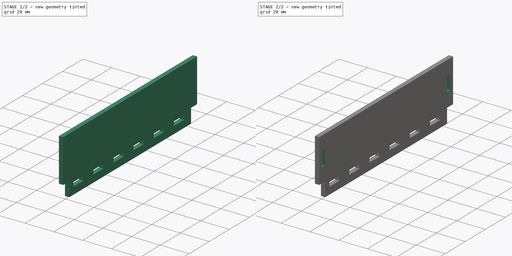
[diagram: build sequence overview — one tinted view per stage of 2, left to right]
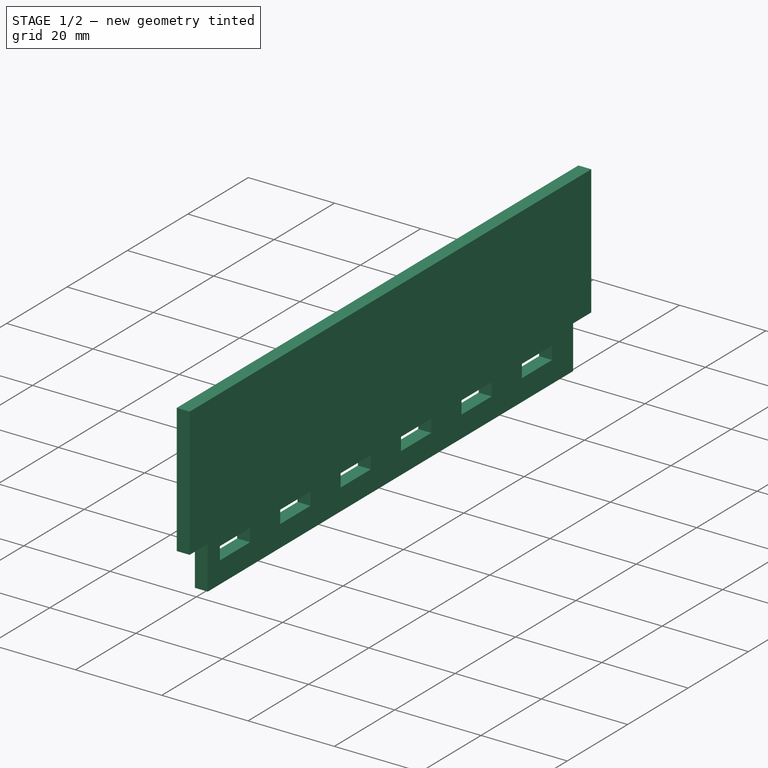
[diagram: stage 1 of 2 — iso view after this stage's code; geometry added in this stage tinted green]
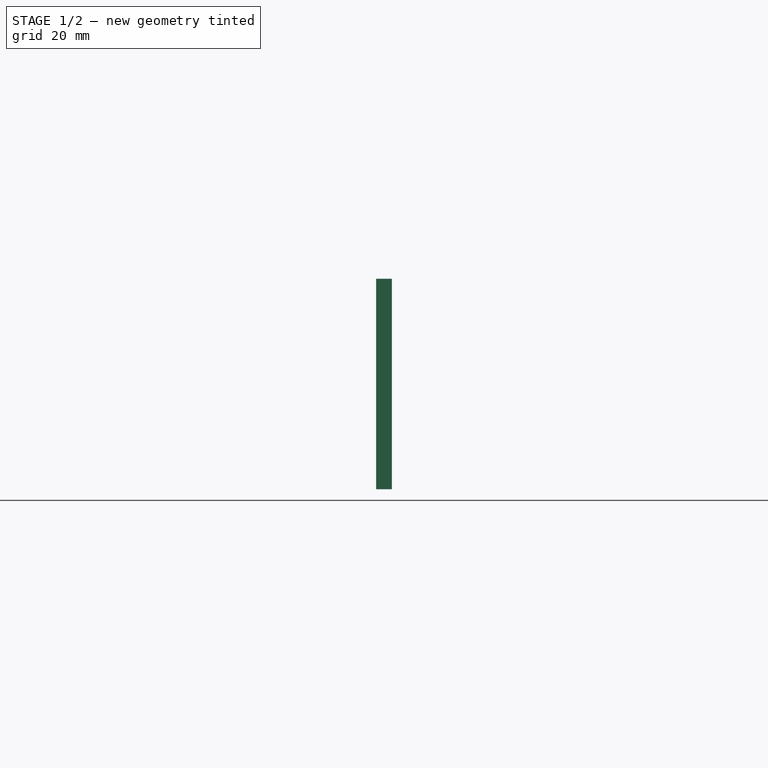
[diagram: stage 1 of 2 — front view after this stage's code; geometry added in this stage tinted green]
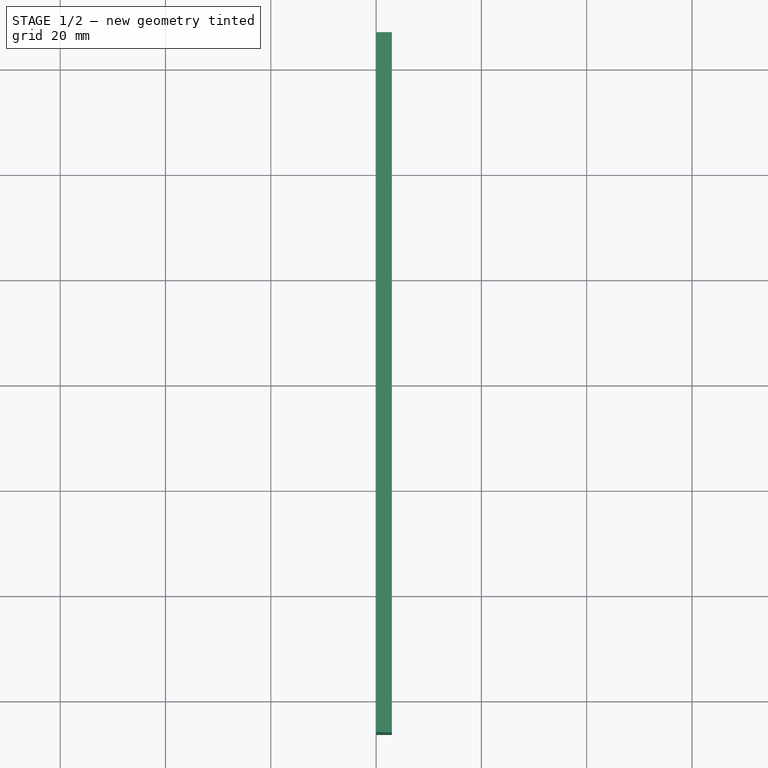
[diagram: stage 1 of 2 — top view after this stage's code; geometry added in this stage tinted green]
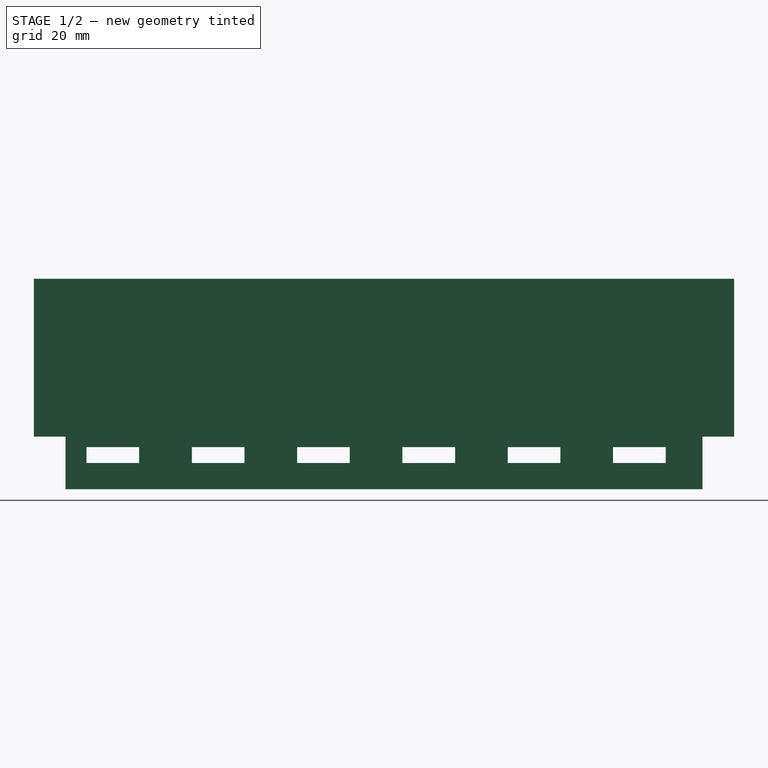
[diagram: stage 1 of 2 — right view after this stage's code; geometry added in this stage tinted green]
FCSTD DOCUMENT  (FreeCAD 0.19R24267 +148 (Git))
Label: SideDrawer
License: All rights reserved
LicenseURL: http://en.wikipedia.org/wiki/All_rights_reserved
objects: Sketcher::SketchObject×3, PartDesign::Pocket×2, PartDesign::Pad×1, PartDesign::Mirrored×1, PartDesign::Body×1
note: 11 computed .brp shape members not serialized (recipe doc carries the construction recipe); baked Part::Feature solids carry a one-line shape summary decoded from their .brp

FEATURE [Sketcher::SketchObject] Sketch
  FullyConstrained = true
  MapMode = 5
  Placement = pos=(0,0,0) rot=(0.57735,0.57735,0.57735;2.0944rad)
  Support = -> [YZ_Plane]
  sketch-geometry (8):
    g0: LineSegment StartX=-60.5 StartY=0 StartZ=0 EndX=60.5 EndY=0 EndZ=0
    g1: LineSegment StartX=66.5 StartY=10 StartZ=0 EndX=66.5 EndY=40 EndZ=0
    g2: LineSegment StartX=66.5 StartY=40 StartZ=0 EndX=-66.5 EndY=40 EndZ=0
    g3: LineSegment StartX=-66.5 StartY=40 StartZ=0 EndX=-66.5 EndY=10 EndZ=0
    g4: LineSegment StartX=-66.5 StartY=10 StartZ=0 EndX=-60.5 EndY=10 EndZ=0
    g5: LineSegment StartX=-60.5 StartY=10 StartZ=0 EndX=-60.5 EndY=0 EndZ=0
    g6: LineSegment StartX=66.5 StartY=10 StartZ=0 EndX=60.5 EndY=10 EndZ=0
    g7: LineSegment StartX=60.5 StartY=10 StartZ=0 EndX=60.5 EndY=0 EndZ=0
  constraints (23):
    c: Coincident(g1,g2)
    c: Coincident(g2,g3)
    c: Horizontal(g0)
    c: Vertical(g1)
    c: Vertical(g3)
    c: Symmetric(g1,g2,g-2)
    c: DistanceX(g2,g2) = 133
    c: Horizontal(g4)
    c: Coincident(g4,g5)
    c: Vertical(g5)
    c: Horizontal(g6)
    c: Coincident(g6,g7)
    c: Vertical(g7)
    c: Coincident(g0,g5)
    c: Coincident(g0,g7)
    c: Coincident(g1,g6)
    c: Coincident(g3,g4)
    c: Equal(g5,g7)
    c: Equal(g6,g4)
    c: DistanceY(g0,g2) = 40
    c: DistanceY(g5,g5) = 10
    c: DistanceX(g4,g4) = 6
    c: PointOnObject(g-1,g0)
FEATURE [PartDesign::Pad] Pad
  Direction = (1,1,1)
  Length = 3
  Length2 = 100
  Placement = pos=(0,0,0) rot=(0.57735,0.57735,0.57735;2.0944rad)
  Profile = -> Sketch
  Refine = true
  Type = 0
FEATURE [Sketcher::SketchObject] Sketch001
  ExternalGeometry = -> [Pad]
  FullyConstrained = true
  MapMode = 5
  Placement = pos=(3,-1.3e-15,1e-15) rot=(0.57735,0.57735,0.57735;2.0944rad)
  Support = -> [Pad]
  sketch-geometry (29):
    g0: LineSegment StartX=-56.5 StartY=5 StartZ=0 EndX=-46.5 EndY=5 EndZ=0
    g1: LineSegment StartX=-46.5 StartY=5 StartZ=0 EndX=-46.5 EndY=8 EndZ=0
    g2: LineSegment StartX=-46.5 StartY=8 StartZ=0 EndX=-56.5 EndY=8 EndZ=0
    g3: LineSegment StartX=-56.5 StartY=8 StartZ=0 EndX=-56.5 EndY=5 EndZ=0
    g4: LineSegment StartX=-36.5 StartY=5 StartZ=0 EndX=-26.5 EndY=5 EndZ=0
    g5: LineSegment StartX=-26.5 StartY=5 StartZ=0 EndX=-26.5 EndY=8 EndZ=0
    g6: LineSegment StartX=-26.5 StartY=8 StartZ=0 EndX=-36.5 EndY=8 EndZ=0
    g7: LineSegment StartX=-36.5 StartY=8 StartZ=0 EndX=-36.5 EndY=5 EndZ=0
    g8: LineSegment StartX=-56.5 StartY=5 StartZ=0 EndX=-36.5 EndY=5 EndZ=0
    g9: LineSegment StartX=-16.5 StartY=5 StartZ=0 EndX=-6.5 EndY=5 EndZ=0
    g10: LineSegment StartX=-6.5 StartY=5 StartZ=0 EndX=-6.5 EndY=8 EndZ=0
    g11: LineSegment StartX=-6.5 StartY=8 StartZ=0 EndX=-16.5 EndY=8 EndZ=0
    g12: LineSegment StartX=-16.5 StartY=8 StartZ=0 EndX=-16.5 EndY=5 EndZ=0
    g13: LineSegment StartX=-36.5 StartY=5 StartZ=0 EndX=-16.5 EndY=5 EndZ=0
    g14: LineSegment StartX=3.5 StartY=5 StartZ=0 EndX=13.5 EndY=5 EndZ=0
    g15: LineSegment StartX=13.5 StartY=5 StartZ=0 EndX=13.5 EndY=8 EndZ=0
    g16: LineSegment StartX=13.5 StartY=8 StartZ=0 EndX=3.5 EndY=8 EndZ=0
    g17: LineSegment StartX=3.5 StartY=8 StartZ=0 EndX=3.5 EndY=5 EndZ=0
    g18: LineSegment StartX=-16.5 StartY=5 StartZ=0 EndX=3.5 EndY=5 EndZ=0
    g19: LineSegment StartX=23.5 StartY=5 StartZ=0 EndX=33.5 EndY=5 EndZ=0
    g20: LineSegment StartX=33.5 StartY=5 StartZ=0 EndX=33.5 EndY=8 EndZ=0
    g21: LineSegment StartX=33.5 StartY=8 StartZ=0 EndX=23.5 EndY=8 EndZ=0
    g22: LineSegment StartX=23.5 StartY=8 StartZ=0 EndX=23.5 EndY=5 EndZ=0
    g23: LineSegment StartX=3.5 StartY=5 StartZ=0 EndX=23.5 EndY=5 EndZ=0
    g24: LineSegment StartX=43.5 StartY=5 StartZ=0 EndX=53.5 EndY=5 EndZ=0
    g25: LineSegment StartX=53.5 StartY=5 StartZ=0 EndX=53.5 EndY=8 EndZ=0
    g26: LineSegment StartX=53.5 StartY=8 StartZ=0 EndX=43.5 EndY=8 EndZ=0
    g27: LineSegment StartX=43.5 StartY=8 StartZ=0 EndX=43.5 EndY=5 EndZ=0
    g28: LineSegment StartX=23.5 StartY=5 StartZ=0 EndX=43.5 EndY=5 EndZ=0
  constraints (82):
    c: Coincident(g0,g1)
    c: Coincident(g1,g2)
    c: Coincident(g2,g3)
    c: Coincident(g3,g0)
    c: Horizontal(g0)
    c: Horizontal(g2)
    c: Vertical(g1)
    c: Vertical(g3)
    c: DistanceX(g2,g2) = 10
    c: DistanceY(g1,g1) = 3
    c: DistanceY(g-3,g0) = 5
    c: DistanceX(g-3,g0) = 4
    c: Coincident(g4,g5)
    c: Coincident(g5,g6)
    c: Coincident(g6,g7)
    c: Coincident(g7,g4)
    c: Horizontal(g4)
    c: Horizontal(g6)
    c: Vertical(g5)
    c: Vertical(g7)
    c: Equal(g2,g6) = 10
    c: Equal(g1,g5) = 3
    c: Coincident(g0,g8)
    c: Coincident(g4,g8)
    c: Distance(g8) = 20
    c: Coincident(g9,g10)
    c: Coincident(g10,g11)
    c: Coincident(g11,g12)
    c: Coincident(g12,g9)
    c: Horizontal(g9)
    c: Horizontal(g11)
    c: Vertical(g10)
    c: Vertical(g12)
    c: Equal(g2,g11) = 10
    c: Equal(g1,g10) = 3
    c: Coincident(g4,g13)
    c: Coincident(g9,g13)
    c: Equal(g8,g13)
    c: Parallel(g13,g8)
    c: Coincident(g14,g15)
    c: Coincident(g15,g16)
    c: Coincident(g16,g17)
    c: Coincident(g17,g14)
    c: Horizontal(g14)
    c: Horizontal(g16)
    c: Vertical(g15)
    c: Vertical(g17)
    c: Equal(g2,g16) = 10
    c: Equal(g1,g15) = 3
    c: Coincident(g9,g18)
    c: Coincident(g14,g18)
    c: Equal(g8,g18)
    c: Parallel(g18,g8)
    c: Coincident(g19,g20)
    c: Coincident(g20,g21)
    c: Coincident(g21,g22)
    c: Coincident(g22,g19)
    c: Horizontal(g19)
    c: Horizontal(g21)
    c: Vertical(g20)
    c: Vertical(g22)
    c: Equal(g2,g21) = 10
    c: Equal(g1,g20) = 3
    c: Coincident(g14,g23)
    c: Coincident(g19,g23)
    c: Equal(g8,g23)
    c: Parallel(g23,g8)
    c: Coincident(g24,g25)
    c: Coincident(g25,g26)
    c: Coincident(g26,g27)
    c: Coincident(g27,g24)
    c: Horizontal(g24)
    c: Horizontal(g26)
    c: Vertical(g25)
    c: Vertical(g27)
    c: Equal(g2,g26) = 10
    c: Equal(g1,g25) = 3
    c: Coincident(g19,g28)
    c: Coincident(g24,g28)
    c: Equal(g8,g28)
    c: Parallel(g28,g8)
    c: Horizontal(g8)
FEATURE [PartDesign::Pocket] Pocket  label="BottomCrenel"
  BaseFeature = -> Pad
  Length = 5
  Length2 = 100
  Placement = pos=(0,0,0) rot=(0.57735,0.57735,0.57735;2.0944rad)
  Profile = -> Sketch001
  Refine = true
  Type = 1
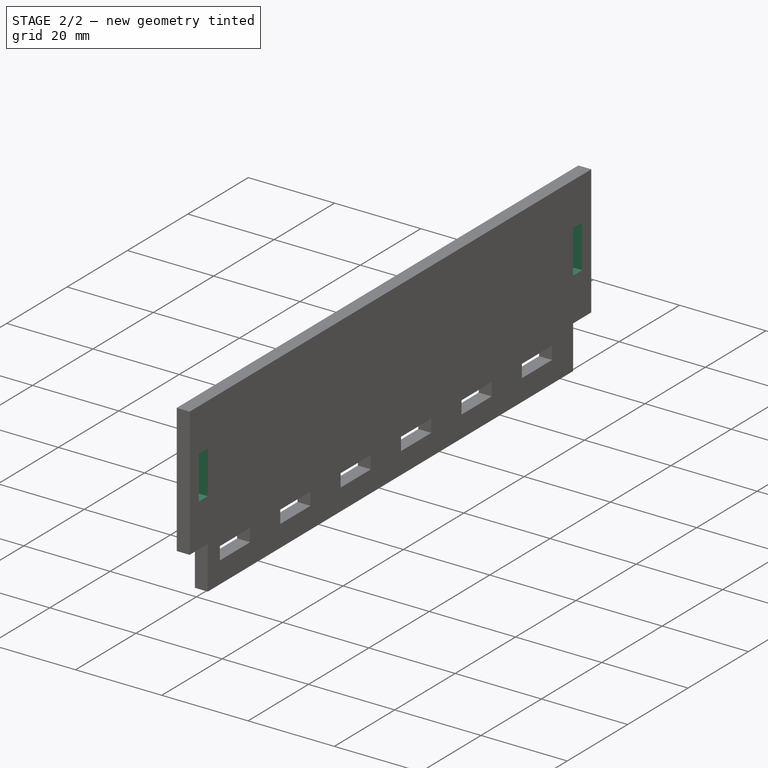
[diagram: stage 2 of 2 — iso view after this stage's code; geometry added in this stage tinted green]
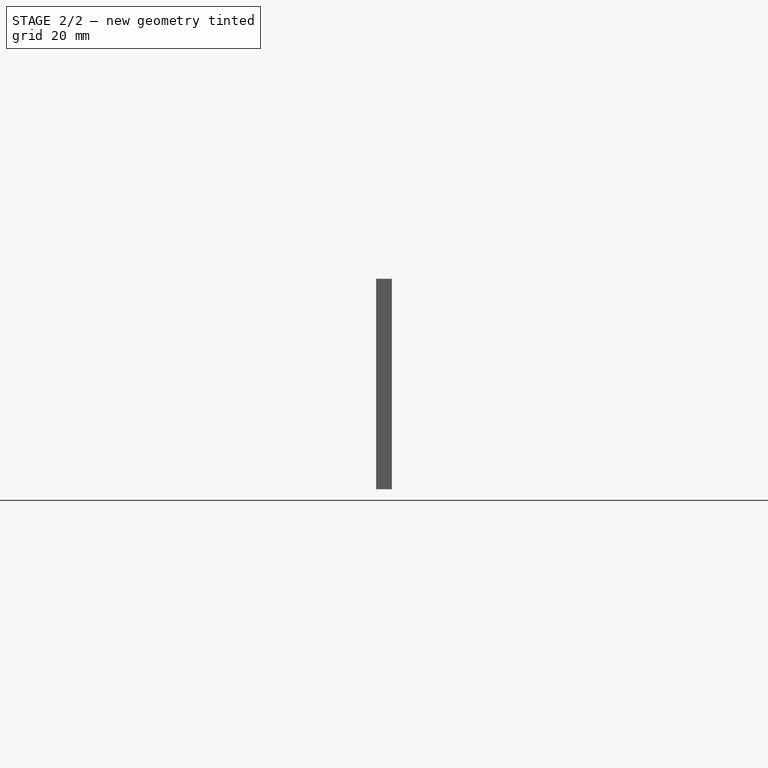
[diagram: stage 2 of 2 — front view after this stage's code; geometry added in this stage tinted green]
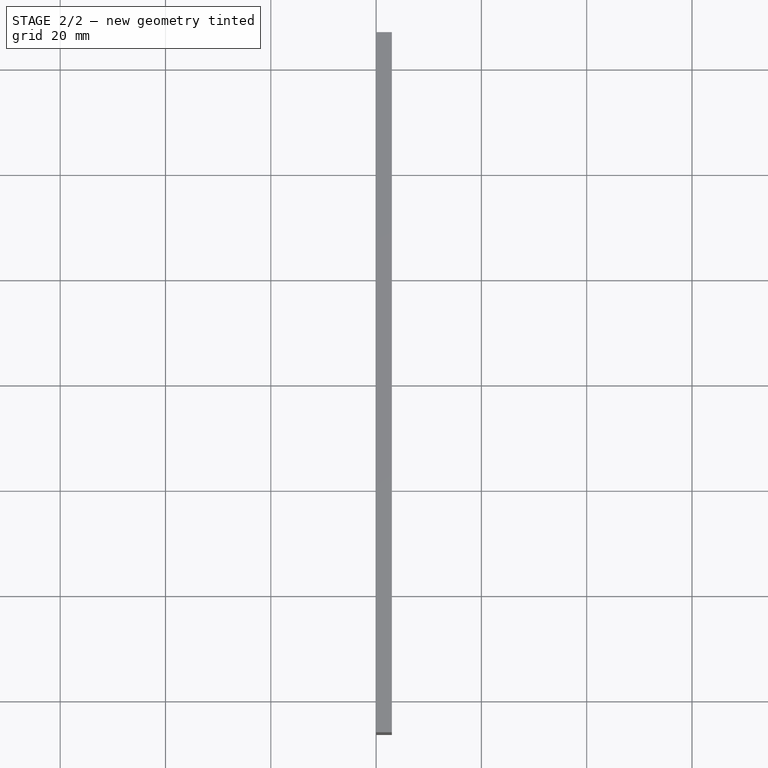
[diagram: stage 2 of 2 — top view after this stage's code; geometry added in this stage tinted green]
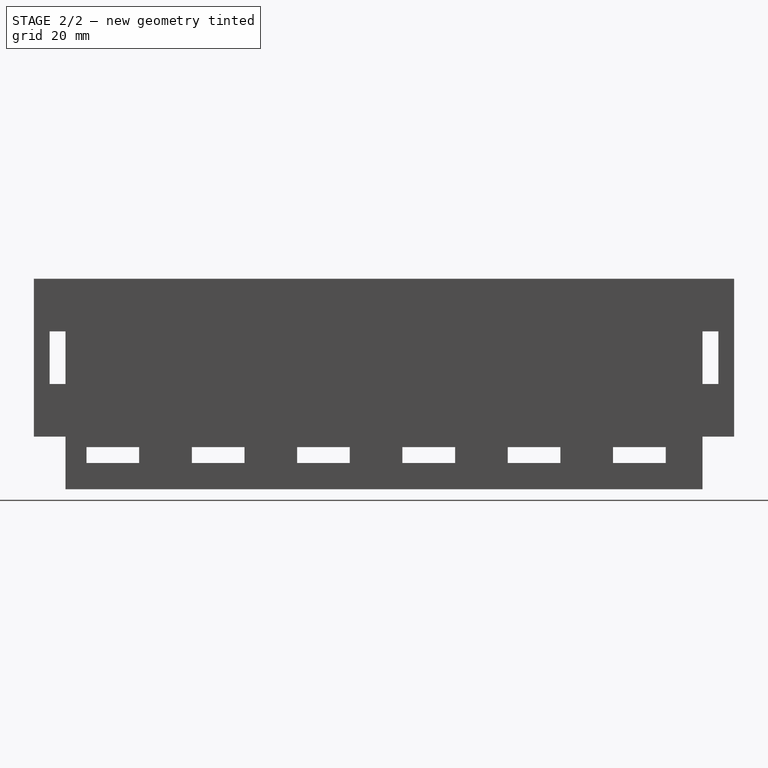
[diagram: stage 2 of 2 — right view after this stage's code; geometry added in this stage tinted green]
FEATURE [Sketcher::SketchObject] Sketch002
  ExternalGeometry = -> [Pocket]
  FullyConstrained = true
  MapMode = 5
  Placement = pos=(3,-2e-15,1.3e-15) rot=(0.57735,0.57735,0.57735;2.0944rad)
  Support = -> [Pocket]
  sketch-geometry (4):
    g0: LineSegment StartX=-60.5 StartY=30 StartZ=0 EndX=-63.5 EndY=30 EndZ=0
    g1: LineSegment StartX=-63.5 StartY=30 StartZ=0 EndX=-63.5 EndY=20 EndZ=0
    g2: LineSegment StartX=-63.5 StartY=20 StartZ=0 EndX=-60.5 EndY=20 EndZ=0
    g3: LineSegment StartX=-60.5 StartY=20 StartZ=0 EndX=-60.5 EndY=30 EndZ=0
  constraints (12):
    c: Coincident(g0,g1)
    c: Coincident(g1,g2)
    c: Coincident(g2,g3)
    c: Coincident(g3,g0)
    c: Horizontal(g0)
    c: Horizontal(g2)
    c: Vertical(g1)
    c: Vertical(g3)
    c: DistanceY(g0,g-3) = 10
    c: DistanceY(g3,g3) = 10
    c: DistanceX(g2,g2) = 3
    c: DistanceX(g-3,g0) = 3
FEATURE [PartDesign::Pocket] Pocket001  label="FrontCrenel"
  BaseFeature = -> Pocket
  Length = 5
  Length2 = 100
  Placement = pos=(0,0,0) rot=(0.57735,0.57735,0.57735;2.0944rad)
  Profile = -> Sketch002
  Refine = true
  Type = 1
FEATURE [PartDesign::Mirrored] Mirrored  label="BackCrenel"
  BaseFeature = -> Pocket001
  MirrorPlane = -> Sketch002 [V_Axis]
  Originals = -> [Pocket001]
  Placement = pos=(0,0,0) rot=(0.57735,0.57735,0.57735;2.0944rad)
  Refine = true
FEATURE [PartDesign::Body] Body
  Group = -> [Sketch,Pad,Sketch001,Pocket,Sketch002,Pocket001,Mirrored]
  Origin = -> Origin
  Tip = -> Mirrored
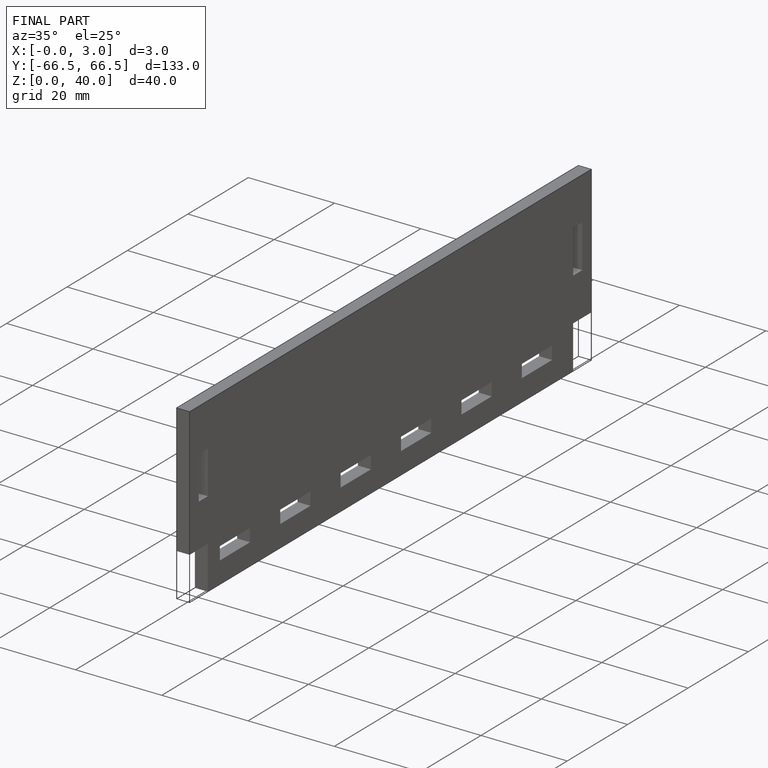
[diagram: finished part — iso view with bounding-box wireframe]
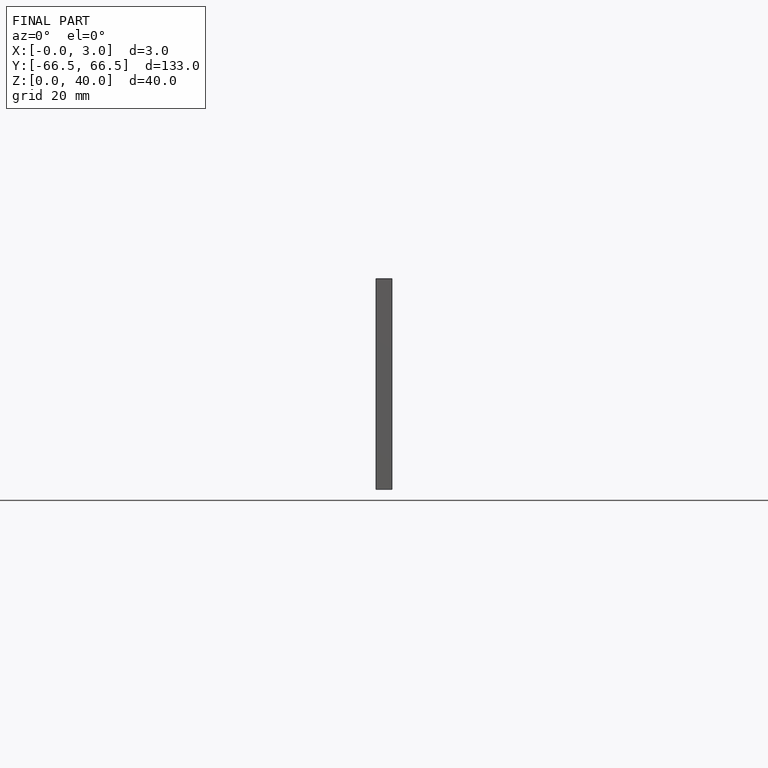
[diagram: finished part — front view with bounding-box wireframe]
